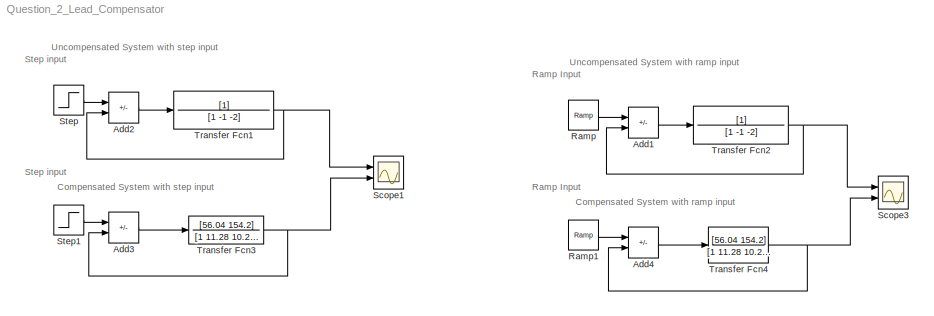
MODEL Question_2_Lead_Compensator
KIND model
BLOCK [Sum] Add1
  IconShape = rectangular
  Inputs = +-
  Ports = [2, 1]
  SID = 28
BLOCK [Sum] Add2
  IconShape = rectangular
  Inputs = +-
  Ports = [2, 1]
  SID = 19
BLOCK [Sum] Add3
  IconShape = rectangular
  Inputs = +-
  Ports = [2, 1]
  SID = 20
BLOCK [Sum] Add4
  IconShape = rectangular
  Inputs = +-
  Ports = [2, 1]
  SID = 29
BLOCK [Reference] Ramp  REF=simulink/Sources/Ramp
  InitialOutput = 0
  Ports = [0, 1]
  RTWMemSecDataConstants = Inherit from model
  RTWMemSecDataInternal = Inherit from model
  RTWMemSecDataParameters = Inherit from model
  RTWMemSecFuncExecute = Inherit from model
  RTWMemSecFuncInitTerm = Inherit from model
  SID = 27
  SourceBlock = simulink/Sources/Ramp
  SourceType = Ramp
  VectorParams1D = on
  slope = 1
  start = 0
BLOCK [Reference] Ramp1  REF=simulink/Sources/Ramp
  InitialOutput = 0
  Ports = [0, 1]
  RTWMemSecDataConstants = Inherit from model
  RTWMemSecDataInternal = Inherit from model
  RTWMemSecDataParameters = Inherit from model
  RTWMemSecFuncExecute = Inherit from model
  RTWMemSecFuncInitTerm = Inherit from model
  SID = 38
  SourceBlock = simulink/Sources/Ramp
  SourceType = Ramp
  VectorParams1D = on
  slope = 1
  start = 0
BLOCK [Scope] Scope1
  Floating = off
  NumInputPorts = 2
  Ports = [2]
  SID = 13
  ScopeSpecificationString = Simulink.scopes.TimeScopeBlockCfg('CurrentConfiguration', extmgr.ConfigurationSet(extmgr.Configuration('Core','General UI',true),extmgr.Configuration('Core','Source UI',true),extmgr.Configuration('Sources','WiredSimulink',true,'SampleTime','0.001'),extmgr.Configuration('Visuals','Time Domain',true,'SerializedDisplays',{struct('MinYLimReal','-0.77998','MaxYLimReal','7.01986','YLabelReal','','MinYLi...<+1450ch>
BLOCK [Scope] Scope3
  Floating = off
  NumInputPorts = 2
  Ports = [2]
  SID = 31
  ScopeSpecificationString = Simulink.scopes.TimeScopeBlockCfg('CurrentConfiguration', extmgr.ConfigurationSet(extmgr.Configuration('Core','General UI',true),extmgr.Configuration('Core','Source UI',true),extmgr.Configuration('Sources','WiredSimulink',true,'DataLoggingVariableName','ScopeData2','SampleTime','0.001'),extmgr.Configuration('Visuals','Time Domain',true,'SerializedDisplays',{struct('MinYLimReal','-0.37555','MaxYLim...<+1462ch>
BLOCK [Step] Step
  SID = 1
  SampleTime = 0
  Time = 0
BLOCK [Step] Step1
  SID = 14
  SampleTime = 0
  Time = 0
BLOCK [TransferFcn] Transfer Fcn1
  Denominator = [1 -1 -2]
  SID = 5
BLOCK [TransferFcn] Transfer Fcn2
  Denominator = [1 -1 -2]
  SID = 43
BLOCK [TransferFcn] Transfer Fcn3
  Denominator = [1 11.28 10.28 0]
  Numerator = [56.04 154.2]
  SID = 16
BLOCK [TransferFcn] Transfer Fcn4
  Denominator = [1 11.28 10.28 0]
  Numerator = [56.04 154.2]
  SID = 44
ANNOTATION (root): Compensated System with ramp input
ANNOTATION (root): Compensated System with step input
ANNOTATION (root): Ramp Input
ANNOTATION (root): Step input
ANNOTATION (root): Uncompensated System with ramp input
ANNOTATION (root): Uncompensated System with step input
LINE Add1:1 -> Transfer Fcn2:1
LINE Add2:1 -> Transfer Fcn1:1
LINE Add3:1 -> Transfer Fcn3:1
LINE Add4:1 -> Transfer Fcn4:1
LINE Ramp1:1 -> Add4:1
LINE Ramp:1 -> Add1:1
LINE Step1:1 -> Add3:1
LINE Step:1 -> Add2:1
NET Transfer Fcn1:1 -> Add2:2, Scope1:1
NET Transfer Fcn2:1 -> Add1:2, Scope3:1
NET Transfer Fcn3:1 -> Add3:2, Scope1:2
NET Transfer Fcn4:1 -> Add4:2, Scope3:2
note: NET lines group one-source signal fan-out (src -> all destinations, sorted); 1:1 wires keep LINE
